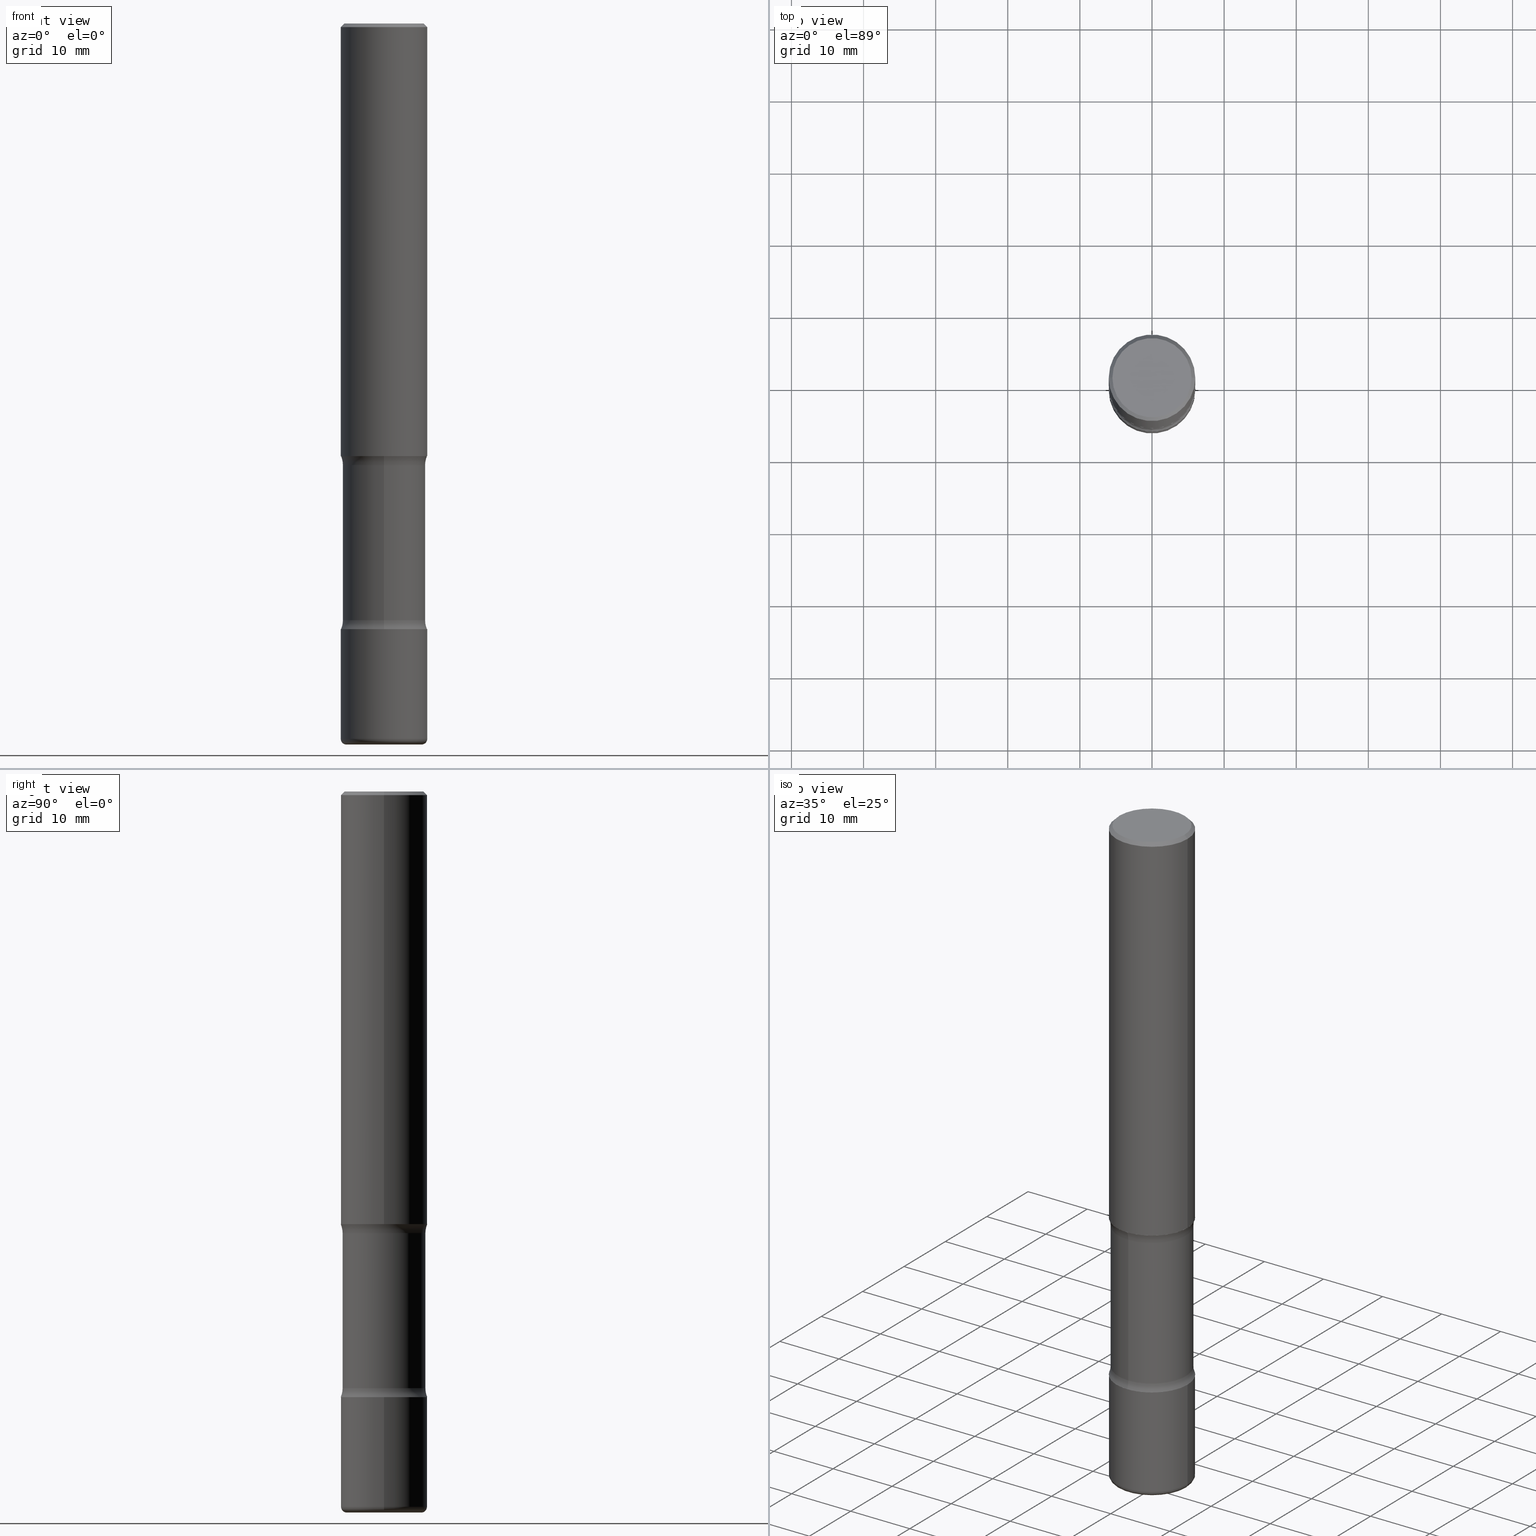
[diagram: canonical four-view strip — front | top / right | iso, engineering-drawing reading convention]
A machine part, canonical four-view strip (front | top / right | iso — engineering-drawing reading convention). The complete STEP part file that produces these views, byte-faithful:
ISO-10303-21;
HEADER;
FILE_DESCRIPTION (( 'STEP AP203' ),
    '1' );
FILE_NAME ('44957.STEP',
    '2024-03-02T03:56:31',
    ( '' ),
    ( '' ),
    'SwSTEP 2.0',
    'SolidWorks 2023',
    '' );
FILE_SCHEMA (( 'CONFIG_CONTROL_DESIGN' ));
ENDSEC;

DATA;
#1 = AXIS2_PLACEMENT_3D ( 'NONE', #309, #432, #483 ) ;
#2 = ORIENTED_EDGE ( 'NONE', *, *, #190, .T. ) ;
#3 = DIRECTION ( 'NONE',  ( 1.000000000000000000, -6.982962677686269077E-15, 0.000000000000000000 ) ) ;
#4 = EDGE_CURVE ( 'NONE', #67, #448, #377, .T. ) ;
#5 = DIRECTION ( 'NONE',  ( 0.000000000000000000, 0.000000000000000000, 1.000000000000000000 ) ) ;
#6 = ORIENTED_EDGE ( 'NONE', *, *, #467, .T. ) ;
#7 = CARTESIAN_POINT ( 'NONE',  ( 5.776686413970529753E-29, -8.247577218615279626E-15, -2.362200000000000077 ) ) ;
#8 = PERSON_AND_ORGANIZATION_ROLE ( 'design_owner' ) ;
#9 = ORIENTED_EDGE ( 'NONE', *, *, #227, .F. ) ;
#10 = CIRCLE ( 'NONE', #560, 0.2362000000000001321 ) ;
#11 = EDGE_CURVE ( 'NONE', #18, #102, #285, .T. ) ;
#12 = DIRECTION ( 'NONE',  ( 2.576736035233696868E-29, -3.303499195578914139E-15, -1.000000000000000000 ) ) ;
#13 = EDGE_LOOP ( 'NONE', ( #92, #182, #137, #2 ) ) ;
#14 = DIRECTION ( 'NONE',  ( 1.000000000000000000, -6.982962677686268288E-15, 0.000000000000000000 ) ) ;
#15 = DIRECTION ( 'NONE',  ( -2.445468806185136597E-29, 3.491481338843145583E-15, 1.000000000000000000 ) ) ;
#16 = APPLICATION_CONTEXT ( 'configuration controlled 3d designs of mechanical parts and assemblies' ) ;
#17 = ORIENTED_EDGE ( 'NONE', *, *, #474, .T. ) ;
#18 = VERTEX_POINT ( 'NONE', #369 ) ;
#19 = DIRECTION ( 'NONE',  ( 1.000000000000000000, -6.982962677686268288E-15, 0.000000000000000000 ) ) ;
#20 = AXIS2_PLACEMENT_3D ( 'NONE', #229, #530, #559 ) ;
#21 = ORIENTED_EDGE ( 'NONE', *, *, #334, .F. ) ;
#22 = AXIS2_PLACEMENT_3D ( 'NONE', #215, #12, #521 ) ;
#23 = ADVANCED_FACE ( 'NONE', ( #415 ), #64, .F. ) ;
#24 = CARTESIAN_POINT ( 'NONE',  ( 9.627810689950883669E-29, -1.374596203102546341E-14, -3.937000000000000277 ) ) ;
#25 = DIRECTION ( 'NONE',  ( 1.000000000000000000, -6.982962677686266711E-15, 0.000000000000000000 ) ) ;
#26 = EDGE_CURVE ( 'NONE', #230, #211, #202, .T. ) ;
#27 = DIRECTION ( 'NONE',  ( -1.000000000000000000, 7.105427357600993970E-15, 0.000000000000000000 ) ) ;
#28 = EDGE_CURVE ( 'NONE', #448, #89, #531, .T. ) ;
#29 = AXIS2_PLACEMENT_3D ( 'NONE', #136, #558, #300 ) ;
#30 = EDGE_CURVE ( 'NONE', #89, #278, #479, .T. ) ;
#31 = DIRECTION ( 'NONE',  ( -2.445468806185136597E-29, 3.491481338843145583E-15, 1.000000000000000000 ) ) ;
#32 = ADVANCED_FACE ( 'NONE', ( #201 ), #238, .F. ) ;
#33 = ADVANCED_FACE ( 'NONE', ( #503 ), #491, .T. ) ;
#34 = CYLINDRICAL_SURFACE ( 'NONE', #524, 0.2260000000000000897 ) ;
#35 = DIRECTION ( 'NONE',  ( 6.860497997771532351E-15, 1.000000000000000000, 0.000000000000000000 ) ) ;
#36 = ORIENTED_EDGE ( 'NONE', *, *, #378, .F. ) ;
#37 = VECTOR ( 'NONE', #380, 39.37007874015748143 ) ;
#38 = DIRECTION ( 'NONE',  ( 6.982962677686265922E-15, 1.000000000000000000, -3.303499195578914139E-15 ) ) ;
#39 = APPROVAL_DATE_TIME ( #257, #488 ) ;
#40 = CARTESIAN_POINT ( 'NONE',  ( 0.2361999999999999378, -1.690279253850498377E-15, -0.02000000000000006981 ) ) ;
#41 =( LENGTH_UNIT ( ) NAMED_UNIT ( * ) SI_UNIT ( $, .METRE. ) );
#42 = CARTESIAN_POINT ( 'NONE',  ( 1.649375784469577778E-15, 0.2361999999999885858, -3.307100000000000151 ) ) ;
#43 = ORIENTED_EDGE ( 'NONE', *, *, #334, .T. ) ;
#44 = EDGE_CURVE ( 'NONE', #102, #314, #142, .T. ) ;
#45 = LINE ( 'NONE', #389, #279 ) ;
#46 = AXIS2_PLACEMENT_3D ( 'NONE', #540, #234, #324 ) ;
#47 = FACE_OUTER_BOUND ( 'NONE', #221, .T. ) ;
#48 = AXIS2_PLACEMENT_3D ( 'NONE', #178, #139, #514 ) ;
#49 = PERSON_AND_ORGANIZATION ( #222, #501 ) ;
#50 = CARTESIAN_POINT ( 'NONE',  ( 8.087409888934865187E-29, -1.154667793568816566E-14, -3.307099999999999707 ) ) ;
#51 = CC_DESIGN_APPROVAL ( #488, ( #364 ) ) ;
#52 = FACE_OUTER_BOUND ( 'NONE', #450, .T. ) ;
#53 = ORIENTED_EDGE ( 'NONE', *, *, #474, .F. ) ;
#54 = FACE_OUTER_BOUND ( 'NONE', #146, .T. ) ;
#55 = PLANE ( 'NONE',  #29 ) ;
#56 = ORIENTED_EDGE ( 'NONE', *, *, #556, .T. ) ;
#57 = EDGE_CURVE ( 'NONE', #211, #230, #151, .T. ) ;
#58 = PERSON_AND_ORGANIZATION ( #222, #501 ) ;
#59 = ORIENTED_EDGE ( 'NONE', *, *, #378, .T. ) ;
#60 = LINE ( 'NONE', #97, #506 ) ;
#61 = CIRCLE ( 'NONE', #189, 0.2362000000000004096 ) ;
#62 = ORIENTED_EDGE ( 'NONE', *, *, #66, .T. ) ;
#63 = CALENDAR_DATE ( 2024, 1, 3 ) ;
#64 = PLANE ( 'NONE',  #46 ) ;
#65 = DIRECTION ( 'NONE',  ( -2.445468806185136597E-29, 3.491481338843145583E-15, 1.000000000000000000 ) ) ;
#66 = EDGE_CURVE ( 'NONE', #297, #362, #195, .T. ) ;
#67 = VERTEX_POINT ( 'NONE', #550 ) ;
#68 = DIRECTION ( 'NONE',  ( -2.445468806185136597E-29, 3.491481338843145583E-15, 1.000000000000000000 ) ) ;
#69 = MANIFOLD_SOLID_BREP ( 'Body-Move/Copy2[1]', #460 ) ;
#70 = MANIFOLD_SOLID_BREP ( 'Body-Move/Copy2[4]', #294 ) ;
#71 = EDGE_CURVE ( 'NONE', #314, #394, #126, .T. ) ;
#72 = ORIENTED_EDGE ( 'NONE', *, *, #414, .T. ) ;
#73 = DIRECTION ( 'NONE',  ( -2.445468806185136597E-29, 3.491481338843145583E-15, 1.000000000000000000 ) ) ;
#74 = CC_DESIGN_DATE_AND_TIME_ASSIGNMENT ( #127, #516, ( #364 ) ) ;
#75 = DIRECTION ( 'NONE',  ( 6.982962677686265922E-15, 1.000000000000000000, -3.303499195578914139E-15 ) ) ;
#76 = CIRCLE ( 'NONE', #386, 0.2362000000000001598 ) ;
#77 = LOCAL_TIME ( 22, 56, 31.00000000000000000, #225 ) ;
#78 = EDGE_CURVE ( 'NONE', #423, #230, #150, .T. ) ;
#79 = DIRECTION ( 'NONE',  ( 6.982962677686265133E-15, 1.000000000000000000, -2.417564596163064317E-15 ) ) ;
#80 = ORIENTED_EDGE ( 'NONE', *, *, #317, .F. ) ;
#81 = PLANE ( 'NONE',  #174 ) ;
#82 = LINE ( 'NONE', #251, #37 ) ;
#83 = AXIS2_PLACEMENT_3D ( 'NONE', #416, #316, #27 ) ;
#84 = AXIS2_PLACEMENT_3D ( 'NONE', #406, #455, #277 ) ;
#85 = PERSON_AND_ORGANIZATION ( #222, #501 ) ;
#86 = FACE_OUTER_BOUND ( 'NONE', #99, .T. ) ;
#87 = EDGE_CURVE ( 'NONE', #155, #497, #464, .T. ) ;
#88 =( NAMED_UNIT ( * ) SI_UNIT ( $, .STERADIAN. ) SOLID_ANGLE_UNIT ( ) );
#89 = VERTEX_POINT ( 'NONE', #40 ) ;
#90 = CARTESIAN_POINT ( 'NONE',  ( 5.652652009242545449E-29, -8.425201545785650473E-15, -2.362200000000000077 ) ) ;
#91 = FACE_OUTER_BOUND ( 'NONE', #452, .T. ) ;
#92 = ORIENTED_EDGE ( 'NONE', *, *, #28, .F. ) ;
#93 = DIRECTION ( 'NONE',  ( 6.982962677686265922E-15, 1.000000000000000000, -2.313165108945183090E-15 ) ) ;
#94 = LOCAL_TIME ( 22, 56, 31.00000000000000000, #349 ) ;
#95 =( NAMED_UNIT ( * ) PLANE_ANGLE_UNIT ( ) SI_UNIT ( $, .RADIAN. ) );
#96 = ORIENTED_EDGE ( 'NONE', *, *, #11, .T. ) ;
#97 = CARTESIAN_POINT ( 'NONE',  ( -0.2361999999999999378, 1.579546157692632635E-15, -0.02000000000000006981 ) ) ;
#98 = APPROVAL_ROLE ( '' ) ;
#99 = EDGE_LOOP ( 'NONE', ( #490, #347, #242, #358 ) ) ;
#100 = CARTESIAN_POINT ( 'NONE',  ( 0.000000000000000000, 0.000000000000000000, 0.000000000000000000 ) ) ;
#101 = PERSON_AND_ORGANIZATION_ROLE ( 'creator' ) ;
#102 = VERTEX_POINT ( 'NONE', #128 ) ;
#103 = DIRECTION ( 'NONE',  ( -1.000000000000000000, 6.982962677686266711E-15, 0.000000000000000000 ) ) ;
#104 = AXIS2_PLACEMENT_3D ( 'NONE', #426, #425, #38 ) ;
#105 = AXIS2_PLACEMENT_3D ( 'NONE', #143, #520, #3 ) ;
#106 = CARTESIAN_POINT ( 'NONE',  ( -1.043851414335219820E-46, 1.490343170380447200E-32, 4.268512490100411279E-18 ) ) ;
#107 = ADVANCED_FACE ( 'NONE', ( #249 ), #34, .T. ) ;
#108 = PERSON_AND_ORGANIZATION ( #222, #501 ) ;
#109 = CARTESIAN_POINT ( 'NONE',  ( 1.649375784469555295E-15, 0.2361999999999919442, -2.362200000000000966 ) ) ;
#110 = EDGE_CURVE ( 'NONE', #155, #314, #10, .T. ) ;
#111 = ORIENTED_EDGE ( 'NONE', *, *, #283, .F. ) ;
#112 = ORIENTED_EDGE ( 'NONE', *, *, #467, .F. ) ;
#113 = FACE_OUTER_BOUND ( 'NONE', #551, .T. ) ;
#114 = DESIGN_CONTEXT ( 'detailed design', #343, 'design' ) ;
#115 = VECTOR ( 'NONE', #135, 39.37007874015748143 ) ;
#116 = DIRECTION ( 'NONE',  ( 6.982962677686265133E-15, 1.000000000000000000, -2.417564596163064317E-15 ) ) ;
#117 = CARTESIAN_POINT ( 'NONE',  ( 0.2047000000000001319, -1.506539282897428551E-14, -3.905499999999999972 ) ) ;
#118 = EDGE_CURVE ( 'NONE', #226, #481, #552, .T. ) ;
#119 = DIRECTION ( 'NONE',  ( 2.576736035233696868E-29, -3.303499195578914139E-15, -1.000000000000000000 ) ) ;
#120 = DIRECTION ( 'NONE',  ( 6.982962677686265133E-15, 1.000000000000000000, -2.417564596163063922E-15 ) ) ;
#121 = SECURITY_CLASSIFICATION_LEVEL ( 'unclassified' ) ;
#122 = CARTESIAN_POINT ( 'NONE',  ( -1.585461087284920754E-15, -0.2260000000000114417, -3.257643352317407537 ) ) ;
#123 = AXIS2_PLACEMENT_3D ( 'NONE', #280, #68, #25 ) ;
#124 = AXIS2_PLACEMENT_3D ( 'NONE', #7, #15, #346 ) ;
#125 = CARTESIAN_POINT ( 'NONE',  ( 9.710495917528571107E-29, -1.362755207898332391E-14, -3.937000000000000277 ) ) ;
#126 = LINE ( 'NONE', #171, #254 ) ;
#127 = DATE_AND_TIME ( #509, #94 ) ;
#128 = CARTESIAN_POINT ( 'NONE',  ( -0.2047000000000001874, -1.212457973895554376E-14, -3.937000000000000277 ) ) ;
#129 = AXIS2_PLACEMENT_3D ( 'NONE', #470, #508, #555 ) ;
#130 = AXIS2_PLACEMENT_3D ( 'NONE', #188, #308, #14 ) ;
#131 = ADVANCED_FACE ( 'NONE', ( #86 ), #533, .F. ) ;
#132 = DIRECTION ( 'NONE',  ( 2.438088387897960049E-29, -3.491481338843145188E-15, -1.000000000000000000 ) ) ;
#133 = ORIENTED_EDGE ( 'NONE', *, *, #57, .F. ) ;
#134 = PERSON_AND_ORGANIZATION_ROLE ( 'classification_officer' ) ;
#135 = DIRECTION ( 'NONE',  ( -2.445468806185136877E-29, 3.491481338843145188E-15, 1.000000000000000000 ) ) ;
#136 = CARTESIAN_POINT ( 'NONE',  ( 5.776686413970529753E-29, -8.247577218615279626E-15, -2.362200000000000077 ) ) ;
#137 = ORIENTED_EDGE ( 'NONE', *, *, #265, .T. ) ;
#138 = CYLINDRICAL_SURFACE ( 'NONE', #159, 0.2362000000000001321 ) ;
#139 = DIRECTION ( 'NONE',  ( -1.000000000000000000, 6.982962677686265922E-15, -4.883557194083112901E-29 ) ) ;
#140 = EDGE_LOOP ( 'NONE', ( #270, #187 ) ) ;
#141 = FACE_OUTER_BOUND ( 'NONE', #549, .T. ) ;
#142 = CIRCLE ( 'NONE', #83, 0.03149999999999995859 ) ;
#143 = CARTESIAN_POINT ( 'NONE',  ( 9.550778422556051750E-29, -1.363598036885190475E-14, -3.905499999999999972 ) ) ;
#144 = CIRCLE ( 'NONE', #168, 0.2260000000000001730 ) ;
#145 = FACE_OUTER_BOUND ( 'NONE', #430, .T. ) ;
#146 = EDGE_LOOP ( 'NONE', ( #96, #434, #465, #21 ) ) ;
#147 = EDGE_LOOP ( 'NONE', ( #223, #441 ) ) ;
#148 = CYLINDRICAL_SURFACE ( 'NONE', #410, 0.2362000000000001321 ) ;
#149 = DIRECTION ( 'NONE',  ( 0.7071067811865472397, -7.319954787623254468E-15, -0.7071067811865477948 ) ) ;
#150 = CIRCLE ( 'NONE', #424, 0.1250000000000000278 ) ;
#151 = CIRCLE ( 'NONE', #500, 0.2260000000000000620 ) ;
#152 = PRODUCT_DEFINITION_FORMATION_WITH_SPECIFIED_SOURCE ( 'ANY', '', #160, .NOT_KNOWN. ) ;
#153 = CARTESIAN_POINT ( 'NONE',  ( 7.959973162669273732E-29, -1.138329793985269342E-14, -3.257643352317407981 ) ) ;
#154 = PLANE ( 'NONE',  #379 ) ;
#155 = VERTEX_POINT ( 'NONE', #375 ) ;
#156 = ORIENTED_EDGE ( 'NONE', *, *, #26, .T. ) ;
#157 = TOROIDAL_SURFACE ( 'NONE', #318, 0.2047000000000001319, 0.03149999999999995859 ) ;
#158 = CARTESIAN_POINT ( 'NONE',  ( 5.802249140232449076E-29, -8.556846580764000763E-15, -2.411656647682591803 ) ) ;
#159 = AXIS2_PLACEMENT_3D ( 'NONE', #302, #198, #502 ) ;
#160 = PRODUCT ( '44957', '44957', '', ( #181 ) ) ;
#161 = EDGE_CURVE ( 'NONE', #448, #67, #442, .T. ) ;
#162 = DIRECTION ( 'NONE',  ( -2.445468806185136597E-29, 3.491481338843145583E-15, 1.000000000000000000 ) ) ;
#163 = CARTESIAN_POINT ( 'NONE',  ( -1.550472547496269736E-15, -0.2260000000000137177, -3.936999999999999389 ) ) ;
#164 = ORIENTED_EDGE ( 'NONE', *, *, #341, .T. ) ;
#165 = ADVANCED_FACE ( 'NONE', ( #331 ), #335, .F. ) ;
#166 = DIRECTION ( 'NONE',  ( 2.576736035233696868E-29, -3.303499195578914139E-15, -1.000000000000000000 ) ) ;
#167 = CIRCLE ( 'NONE', #124, 0.2362000000000001598 ) ;
#168 = AXIS2_PLACEMENT_3D ( 'NONE', #266, #183, #359 ) ;
#169 = CARTESIAN_POINT ( 'NONE',  ( 8.087409888934865187E-29, -1.154667793568816566E-14, -3.307099999999999707 ) ) ;
#170 = CARTESIAN_POINT ( 'NONE',  ( 1.578149565157176094E-15, 0.2259999999999886822, -3.257643352317408869 ) ) ;
#171 = CARTESIAN_POINT ( 'NONE',  ( -0.2362000000000001321, 1.678301941865357577E-15, -1.161852468318209457E-29 ) ) ;
#172 = CALENDAR_DATE ( 2024, 1, 3 ) ;
#173 = PLANE ( 'NONE',  #507 ) ;
#174 = AXIS2_PLACEMENT_3D ( 'NONE', #461, #245, #419 ) ;
#175 = ADVANCED_FACE ( 'NONE', ( #458 ), #81, .T. ) ;
#176 = CIRCLE ( 'NONE', #22, 0.2362000000000001598 ) ;
#177 = CARTESIAN_POINT ( 'NONE',  ( 9.550778422556051750E-29, -1.363598036885190475E-14, -3.905499999999999972 ) ) ;
#178 = CARTESIAN_POINT ( 'NONE',  ( 2.451019899867960221E-15, 0.3509999999999887654, -3.257643352317409313 ) ) ;
#179 = EDGE_LOOP ( 'NONE', ( #321, #164, #43, #80 ) ) ;
#180 = DIRECTION ( 'NONE',  ( 1.000000000000000000, -6.982962677686266711E-15, 4.876176775795935793E-29 ) ) ;
#181 = MECHANICAL_CONTEXT ( 'NONE', #16, 'mechanical' ) ;
#182 = ORIENTED_EDGE ( 'NONE', *, *, #4, .F. ) ;
#183 = DIRECTION ( 'NONE',  ( 2.576736035233696868E-29, -3.303499195578914139E-15, -1.000000000000000000 ) ) ;
#184 = FACE_OUTER_BOUND ( 'NONE', #355, .T. ) ;
#185 = EDGE_CURVE ( 'NONE', #420, #89, #82, .T. ) ;
#186 = APPLICATION_PROTOCOL_DEFINITION ( 'international standard', 'config_control_design', 1994, #343 ) ;
#187 = ORIENTED_EDGE ( 'NONE', *, *, #451, .T. ) ;
#188 = CARTESIAN_POINT ( 'NONE',  ( 8.087409888934865187E-29, -1.154667793568816566E-14, -3.307099999999999707 ) ) ;
#189 = AXIS2_PLACEMENT_3D ( 'NONE', #90, #260, #431 ) ;
#190 = EDGE_CURVE ( 'NONE', #278, #89, #399, .T. ) ;
#191 = ORIENTED_EDGE ( 'NONE', *, *, #26, .F. ) ;
#192 = DIRECTION ( 'NONE',  ( 1.000000000000000000, -6.982962677686269866E-15, 4.883557194083114022E-29 ) ) ;
#193 = ORIENTED_EDGE ( 'NONE', *, *, #87, .T. ) ;
#194 = DIRECTION ( 'NONE',  ( -2.445468806185136597E-29, 3.491481338843145583E-15, 1.000000000000000000 ) ) ;
#195 = CIRCLE ( 'NONE', #129, 0.1249999999999999584 ) ;
#196 = CIRCLE ( 'NONE', #469, 0.2260000000000001730 ) ;
#197 = ORIENTED_EDGE ( 'NONE', *, *, #30, .F. ) ;
#198 = DIRECTION ( 'NONE',  ( -2.445468806185136597E-29, 3.491481338843145583E-15, 1.000000000000000000 ) ) ;
#199 = DIRECTION ( 'NONE',  ( -2.445468806185136597E-29, 3.491481338843145583E-15, 1.000000000000000000 ) ) ;
#200 = ADVANCED_FACE ( 'NONE', ( #340 ), #157, .T. ) ;
#201 = FACE_OUTER_BOUND ( 'NONE', #269, .T. ) ;
#202 = CIRCLE ( 'NONE', #363, 0.2260000000000000620 ) ;
#203 = ORIENTED_EDGE ( 'NONE', *, *, #71, .T. ) ;
#204 = AXIS2_PLACEMENT_3D ( 'NONE', #169, #338, #471 ) ;
#205 = PRODUCT_DEFINITION_SHAPE ( 'NONE', 'NONE',  #494 ) ;
#206 = DIRECTION ( 'NONE',  ( 1.000000000000000000, -6.982962677686266711E-15, 0.000000000000000000 ) ) ;
#207 = CARTESIAN_POINT ( 'NONE',  ( 9.550778422556051750E-29, -1.363598036885190475E-14, -3.905499999999999972 ) ) ;
#208 = DIRECTION ( 'NONE',  ( 1.000000000000000000, -6.982962677686266711E-15, 4.876217060660158478E-29 ) ) ;
#209 = AXIS2_PLACEMENT_3D ( 'NONE', #320, #243, #495 ) ;
#210 = AXIS2_PLACEMENT_3D ( 'NONE', #100, #298, #180 ) ;
#211 = VERTEX_POINT ( 'NONE', #170 ) ;
#212 = CARTESIAN_POINT ( 'NONE',  ( 4.890937612370289799E-31, -6.982962677686315028E-17, -0.02000000000000006981 ) ) ;
#213 = CARTESIAN_POINT ( 'NONE',  ( -1.620449627073580844E-15, -0.2362000000000087363, -2.362199999999999189 ) ) ;
#214 = CALENDAR_DATE ( 2024, 1, 3 ) ;
#215 = CARTESIAN_POINT ( 'NONE',  ( 8.087409888934865187E-29, -1.154667793568816566E-14, -3.307099999999999707 ) ) ;
#216 = ORIENTED_EDGE ( 'NONE', *, *, #492, .F. ) ;
#217 = AXIS2_PLACEMENT_3D ( 'NONE', #177, #396, #192 ) ;
#218 = APPROVAL_PERSON_ORGANIZATION ( #315, #332, #436 ) ;
#219 = CIRCLE ( 'NONE', #326, 0.03149999999999995859 ) ;
#220 = CARTESIAN_POINT ( 'NONE',  ( 0.000000000000000000, 0.000000000000000000, 0.000000000000000000 ) ) ;
#221 = EDGE_LOOP ( 'NONE', ( #477, #398, #193, #275 ) ) ;
#222 = PERSON ( 'UNSPECIFIED', 'UNSPECIFIED', 'UNSPECIFIED', ('UNSPECIFIED'), ('UNSPECIFIED'), ('UNSPECIFIED') ) ;
#223 = ORIENTED_EDGE ( 'NONE', *, *, #11, .F. ) ;
#224 = PERSON_AND_ORGANIZATION_ROLE ( 'creator' ) ;
#225 = COORDINATED_UNIVERSAL_TIME_OFFSET ( 5, 0, .BEHIND. ) ;
#226 = VERTEX_POINT ( 'NONE', #374 ) ;
#227 = EDGE_CURVE ( 'NONE', #226, #230, #253, .T. ) ;
#228 = AXIS2_PLACEMENT_3D ( 'NONE', #24, #199, #371 ) ;
#229 = CARTESIAN_POINT ( 'NONE',  ( 5.652652009242545449E-29, -8.425201545785650473E-15, -2.362200000000000077 ) ) ;
#230 = VERTEX_POINT ( 'NONE', #122 ) ;
#231 = DATE_AND_TIME ( #63, #535 ) ;
#232 = EDGE_CURVE ( 'NONE', #388, #278, #385, .T. ) ;
#233 = CARTESIAN_POINT ( 'NONE',  ( -0.2361999999999999378, 1.579546157692632635E-15, -0.02000000000000006981 ) ) ;
#234 = DIRECTION ( 'NONE',  ( 2.438088387897960049E-29, -3.491481338843145188E-15, -1.000000000000000000 ) ) ;
#235 = CC_DESIGN_DATE_AND_TIME_ASSIGNMENT ( #383, #368, ( #494 ) ) ;
#236 = EDGE_LOOP ( 'NONE', ( #352, #366 ) ) ;
#237 = CARTESIAN_POINT ( 'NONE',  ( 5.776686413970529753E-29, -8.247577218615279626E-15, -2.362200000000000077 ) ) ;
#238 = TOROIDAL_SURFACE ( 'NONE', #325, 0.3510000000000001452, 0.1249999999999999861 ) ;
#239 = LOCAL_TIME ( 22, 56, 31.00000000000000000, #468 ) ;
#240 = ORIENTED_EDGE ( 'NONE', *, *, #190, .F. ) ;
#241 = CARTESIAN_POINT ( 'NONE',  ( 4.890937612370289799E-31, -6.982962677686315028E-17, -0.02000000000000006981 ) ) ;
#242 = ORIENTED_EDGE ( 'NONE', *, *, #492, .T. ) ;
#243 = DIRECTION ( 'NONE',  ( -2.445468806185136597E-29, 3.491481338843145583E-15, 1.000000000000000000 ) ) ;
#244 = AXIS2_PLACEMENT_3D ( 'NONE', #466, #546, #35 ) ;
#245 = DIRECTION ( 'NONE',  ( 2.438088387897960049E-29, -3.491481338843145188E-15, -1.000000000000000000 ) ) ;
#246 = AXIS2_PLACEMENT_3D ( 'NONE', #529, #444, #473 ) ;
#247 = EDGE_CURVE ( 'NONE', #499, #423, #76, .T. ) ;
#248 = ORIENTED_EDGE ( 'NONE', *, *, #185, .F. ) ;
#249 = FACE_OUTER_BOUND ( 'NONE', #361, .T. ) ;
#250 = ADVANCED_FACE ( 'NONE', ( #54 ), #459, .T. ) ;
#251 = CARTESIAN_POINT ( 'NONE',  ( 0.2362000000000000766, -1.649375784469496722E-15, 1.151752954443000368E-29 ) ) ;
#252 = ORIENTED_EDGE ( 'NONE', *, *, #161, .F. ) ;
#253 = LINE ( 'NONE', #163, #306 ) ;
#254 = VECTOR ( 'NONE', #293, 39.37007874015748143 ) ;
#255 = CIRCLE ( 'NONE', #525, 0.2362000000000001598 ) ;
#256 = MANIFOLD_SOLID_BREP ( 'Body-Move/Copy2[2]', #543 ) ;
#257 = DATE_AND_TIME ( #172, #239 ) ;
#258 = APPLICATION_PROTOCOL_DEFINITION ( 'international standard', 'config_control_design', 1994, #16 ) ;
#259 = ORIENTED_EDGE ( 'NONE', *, *, #66, .F. ) ;
#260 = DIRECTION ( 'NONE',  ( 2.576736035233696868E-29, -3.303499195578914139E-15, -1.000000000000000000 ) ) ;
#261 = CYLINDRICAL_SURFACE ( 'NONE', #1, 0.2260000000000000897 ) ;
#262 = LENGTH_MEASURE_WITH_UNIT ( LENGTH_MEASURE( 0.02539999999999999897 ), #41 );
#263 = ORIENTED_EDGE ( 'NONE', *, *, #161, .T. ) ;
#264 = CIRCLE ( 'NONE', #20, 0.2362000000000004096 ) ;
#265 = EDGE_CURVE ( 'NONE', #67, #278, #60, .T. ) ;
#266 = CARTESIAN_POINT ( 'NONE',  ( 5.780088735508136904E-29, -8.588581541621122709E-15, -2.411656647682591803 ) ) ;
#267 = DIRECTION ( 'NONE',  ( 1.000000000000000000, 0.000000000000000000, 0.000000000000000000 ) ) ;
#268 = EDGE_LOOP ( 'NONE', ( #486, #72, #402, #240 ) ) ;
#269 = EDGE_LOOP ( 'NONE', ( #454, #526, #538, #259 ) ) ;
#270 = ORIENTED_EDGE ( 'NONE', *, *, #482, .T. ) ;
#271 = CYLINDRICAL_SURFACE ( 'NONE', #210, 0.2362000000000000766 ) ;
#272 = AXIS2_PLACEMENT_3D ( 'NONE', #106, #65, #413 ) ;
#273 = CIRCLE ( 'NONE', #433, 0.2047000000000001874 ) ;
#274 = CC_DESIGN_PERSON_AND_ORGANIZATION_ASSIGNMENT ( #517, #319, ( #152 ) ) ;
#275 = ORIENTED_EDGE ( 'NONE', *, *, #451, .F. ) ;
#276 = CARTESIAN_POINT ( 'NONE',  ( 7.959973162669273732E-29, -1.138329793985269342E-14, -3.257643352317407981 ) ) ;
#277 = DIRECTION ( 'NONE',  ( 6.982962677686265922E-15, 1.000000000000000000, -3.303499195578914139E-15 ) ) ;
#278 = VERTEX_POINT ( 'NONE', #233 ) ;
#279 = VECTOR ( 'NONE', #376, 39.37007874015748143 ) ;
#280 = CARTESIAN_POINT ( 'NONE',  ( 4.890937612370289799E-31, -6.982962677686315028E-17, -0.02000000000000006981 ) ) ;
#281 = ORIENTED_EDGE ( 'NONE', *, *, #4, .T. ) ;
#282 = CARTESIAN_POINT ( 'NONE',  ( 5.776686413970529753E-29, -8.247577218615279626E-15, -2.362200000000000077 ) ) ;
#283 = EDGE_CURVE ( 'NONE', #481, #362, #264, .T. ) ;
#284 = DIRECTION ( 'NONE',  ( 1.000000000000000000, -6.982962677686269077E-15, 0.000000000000000000 ) ) ;
#285 = CIRCLE ( 'NONE', #228, 0.2047000000000001874 ) ;
#286 = CC_DESIGN_APPROVAL ( #332, ( #152 ) ) ;
#287 = CC_DESIGN_PERSON_AND_ORGANIZATION_ASSIGNMENT ( #85, #134, ( #364 ) ) ;
#288 = CARTESIAN_POINT ( 'NONE',  ( 7.966465199768598522E-29, -1.137400097322265659E-14, -3.257643352317407981 ) ) ;
#289 = APPROVAL_STATUS ( 'not_yet_approved' ) ;
#290 = CARTESIAN_POINT ( 'NONE',  ( 0.2362000000000001321, -1.649375784469497117E-15, 1.151752954443000789E-29 ) ) ;
#291 = EDGE_LOOP ( 'NONE', ( #301, #311, #156, #216 ) ) ;
#292 = APPROVAL_ROLE ( '' ) ;
#293 = DIRECTION ( 'NONE',  ( -2.445468806185136877E-29, 3.491481338843145188E-15, 1.000000000000000000 ) ) ;
#294 = CLOSED_SHELL ( 'NONE', ( #329, #165, #32, #384, #513, #462, #131, #107 ) ) ;
#295 = CIRCLE ( 'NONE', #130, 0.2362000000000001598 ) ;
#296 = CARTESIAN_POINT ( 'NONE',  ( 4.890937612370289799E-31, -6.982962677686315028E-17, -0.02000000000000006981 ) ) ;
#297 = VERTEX_POINT ( 'NONE', #401 ) ;
#298 = DIRECTION ( 'NONE',  ( -2.445468806185136597E-29, 3.491481338843145583E-15, 1.000000000000000000 ) ) ;
#299 = SHAPE_DEFINITION_REPRESENTATION ( #205, #395 ) ;
#300 = DIRECTION ( 'NONE',  ( 6.982962677686265922E-15, 1.000000000000000000, -3.303499195578913745E-15 ) ) ;
#301 = ORIENTED_EDGE ( 'NONE', *, *, #556, .F. ) ;
#302 = CARTESIAN_POINT ( 'NONE',  ( 0.000000000000000000, 0.000000000000000000, 0.000000000000000000 ) ) ;
#303 = CC_DESIGN_PERSON_AND_ORGANIZATION_ASSIGNMENT ( #489, #101, ( #494 ) ) ;
#304 =( CONVERSION_BASED_UNIT ( 'INCH', #262 ) LENGTH_UNIT ( ) NAMED_UNIT ( #403 ) );
#305 = ORIENTED_EDGE ( 'NONE', *, *, #247, .T. ) ;
#306 = VECTOR ( 'NONE', #333, 39.37007874015748143 ) ;
#307 = CC_DESIGN_APPROVAL ( #350, ( #494 ) ) ;
#308 = DIRECTION ( 'NONE',  ( -2.445468806185136597E-29, 3.491481338843145583E-15, 1.000000000000000000 ) ) ;
#309 = CARTESIAN_POINT ( 'NONE',  ( 9.710495917528571107E-29, -1.362755207898332391E-14, -3.937000000000000277 ) ) ;
#310 = EDGE_CURVE ( 'NONE', #420, #388, #167, .T. ) ;
#311 = ORIENTED_EDGE ( 'NONE', *, *, #78, .T. ) ;
#312 = ADVANCED_FACE ( 'NONE', ( #184 ), #148, .T. ) ;
#313 = APPROVAL_DATE_TIME ( #357, #350 ) ;
#314 = VERTEX_POINT ( 'NONE', #475 ) ;
#315 = PERSON_AND_ORGANIZATION ( #222, #501 ) ;
#316 = DIRECTION ( 'NONE',  ( 7.105427357601001859E-15, 1.000000000000000000, -3.491481338843145583E-15 ) ) ;
#317 = EDGE_CURVE ( 'NONE', #314, #155, #453, .T. ) ;
#318 = AXIS2_PLACEMENT_3D ( 'NONE', #422, #554, #548 ) ;
#319 = PERSON_AND_ORGANIZATION_ROLE ( 'design_supplier' ) ;
#320 = CARTESIAN_POINT ( 'NONE',  ( 0.000000000000000000, 0.000000000000000000, 0.000000000000000000 ) ) ;
#321 = ORIENTED_EDGE ( 'NONE', *, *, #44, .F. ) ;
#322 = FACE_OUTER_BOUND ( 'NONE', #236, .T. ) ;
#323 = UNCERTAINTY_MEASURE_WITH_UNIT (LENGTH_MEASURE( 1.000000000000000082E-05 ), #304, 'distance_accuracy_value', 'NONE');
#324 = DIRECTION ( 'NONE',  ( -1.000000000000000000, 6.982962677686265922E-15, -4.876176775795935793E-29 ) ) ;
#325 = AXIS2_PLACEMENT_3D ( 'NONE', #158, #534, #327 ) ;
#326 = AXIS2_PLACEMENT_3D ( 'NONE', #117, #545, #484 ) ;
#327 = DIRECTION ( 'NONE',  ( 6.982962677686265922E-15, 1.000000000000000000, -3.303499195578914139E-15 ) ) ;
#328 = FACE_OUTER_BOUND ( 'NONE', #519, .T. ) ;
#329 = ADVANCED_FACE ( 'NONE', ( #91 ), #261, .T. ) ;
#330 = ADVANCED_FACE ( 'NONE', ( #47 ), #138, .T. ) ;
#331 = FACE_OUTER_BOUND ( 'NONE', #291, .T. ) ;
#332 = APPROVAL ( #360, 'UNSPECIFIED' ) ;
#333 = DIRECTION ( 'NONE',  ( 2.576736035233696868E-29, -3.303499195578913745E-15, -1.000000000000000000 ) ) ;
#334 = EDGE_CURVE ( 'NONE', #18, #155, #219, .T. ) ;
#335 = TOROIDAL_SURFACE ( 'NONE', #409, 0.3510000000000001452, 0.1250000000000000555 ) ;
#336 = APPROVAL_PERSON_ORGANIZATION ( #485, #350, #98 ) ;
#337 = DIRECTION ( 'NONE',  ( -2.445468806185136877E-29, 3.491481338843145188E-15, 1.000000000000000000 ) ) ;
#338 = DIRECTION ( 'NONE',  ( -2.445468806185136597E-29, 3.491481338843145583E-15, 1.000000000000000000 ) ) ;
#339 = ORIENTED_EDGE ( 'NONE', *, *, #30, .T. ) ;
#340 = FACE_OUTER_BOUND ( 'NONE', #179, .T. ) ;
#341 = EDGE_CURVE ( 'NONE', #102, #18, #273, .T. ) ;
#342 = DIRECTION ( 'NONE',  ( 1.000000000000000000, -6.860497997771530774E-15, 4.843100996924597301E-29 ) ) ;
#343 = APPLICATION_CONTEXT ( 'configuration controlled 3d designs of mechanical parts and assemblies' ) ;
#344 = VECTOR ( 'NONE', #337, 39.37007874015748143 ) ;
#345 = CONICAL_SURFACE ( 'NONE', #418, 0.2361999999999999378, 0.7853981633974479459 ) ;
#346 = DIRECTION ( 'NONE',  ( 1.000000000000000000, -6.982962677686268288E-15, 0.000000000000000000 ) ) ;
#347 = ORIENTED_EDGE ( 'NONE', *, *, #247, .F. ) ;
#348 = CARTESIAN_POINT ( 'NONE',  ( 0.000000000000000000, 0.000000000000000000, 0.000000000000000000 ) ) ;
#349 = COORDINATED_UNIVERSAL_TIME_OFFSET ( 5, 0, .BEHIND. ) ;
#350 = APPROVAL ( #438, 'UNSPECIFIED' ) ;
#351 = DIRECTION ( 'NONE',  ( -1.000000000000000000, 6.982962677686265922E-15, -4.876176775795935793E-29 ) ) ;
#352 = ORIENTED_EDGE ( 'NONE', *, *, #310, .F. ) ;
#353 = CARTESIAN_POINT ( 'NONE',  ( 0.2161999999999998645, -1.586759460484351199E-15, 4.268512490111238857E-18 ) ) ;
#354 = CARTESIAN_POINT ( 'NONE',  ( 0.2362000000000001598, -1.319605372015766376E-14, -3.307099999999999707 ) ) ;
#355 = EDGE_LOOP ( 'NONE', ( #522, #203, #439, #557 ) ) ;
#356 = AXIS2_PLACEMENT_3D ( 'NONE', #212, #31, #206 ) ;
#357 = DATE_AND_TIME ( #397, #77 ) ;
#358 = ORIENTED_EDGE ( 'NONE', *, *, #57, .T. ) ;
#359 = DIRECTION ( 'NONE',  ( 6.982962677686265133E-15, 1.000000000000000000, -3.626346894244594700E-15 ) ) ;
#360 = APPROVAL_STATUS ( 'not_yet_approved' ) ;
#361 = EDGE_LOOP ( 'NONE', ( #9, #428, #17, #191 ) ) ;
#362 = VERTEX_POINT ( 'NONE', #109 ) ;
#363 = AXIS2_PLACEMENT_3D ( 'NONE', #153, #119, #116 ) ;
#364 = SECURITY_CLASSIFICATION ( '', '', #121 ) ;
#365 = CARTESIAN_POINT ( 'NONE',  ( 0.2362000000000001598, -9.896953003084776152E-15, -2.362200000000000077 ) ) ;
#366 = ORIENTED_EDGE ( 'NONE', *, *, #414, .F. ) ;
#367 = CARTESIAN_POINT ( 'NONE',  ( 5.780088735508136904E-29, -8.588581541621122709E-15, -2.411656647682591803 ) ) ;
#368 = DATE_TIME_ROLE ( 'creation_date' ) ;
#369 = CARTESIAN_POINT ( 'NONE',  ( 0.2047000000000001874, -1.517537449114784260E-14, -3.937000000000000277 ) ) ;
#370 = DIRECTION ( 'NONE',  ( 1.000000000000000000, -6.982962677686264344E-15, 0.000000000000000000 ) ) ;
#371 = DIRECTION ( 'NONE',  ( 1.000000000000000000, -6.982962677686264344E-15, 0.000000000000000000 ) ) ;
#372 = VECTOR ( 'NONE', #149, 39.37007874015748143 ) ;
#373 = CARTESIAN_POINT ( 'NONE',  ( -1.043851414335219820E-46, 1.490343170380447200E-32, 4.268512490100411279E-18 ) ) ;
#374 = CARTESIAN_POINT ( 'NONE',  ( -1.585461087284945603E-15, -0.2260000000000087772, -2.411656647682590915 ) ) ;
#375 = CARTESIAN_POINT ( 'NONE',  ( 0.2362000000000001321, -1.528535615332140285E-14, -3.905499999999999972 ) ) ;
#376 = DIRECTION ( 'NONE',  ( 2.576736035233696868E-29, -3.303499195578913745E-15, -1.000000000000000000 ) ) ;
#377 = CIRCLE ( 'NONE', #272, 0.2161999999999998645 ) ;
#378 = EDGE_CURVE ( 'NONE', #297, #226, #196, .T. ) ;
#379 = AXIS2_PLACEMENT_3D ( 'NONE', #237, #498, #539 ) ;
#380 = DIRECTION ( 'NONE',  ( -2.445468806185136877E-29, 3.491481338843145188E-15, 1.000000000000000000 ) ) ;
#381 = CC_DESIGN_SECURITY_CLASSIFICATION ( #364, ( #152 ) ) ;
#382 = DIRECTION ( 'NONE',  ( 2.576736035233696868E-29, -3.303499195578914139E-15, -1.000000000000000000 ) ) ;
#383 = DATE_AND_TIME ( #214, #387 ) ;
#384 = ADVANCED_FACE ( 'NONE', ( #328 ), #400, .F. ) ;
#385 = LINE ( 'NONE', #429, #115 ) ;
#386 = AXIS2_PLACEMENT_3D ( 'NONE', #50, #407, #93 ) ;
#387 = LOCAL_TIME ( 22, 56, 31.00000000000000000, #427 ) ;
#388 = VERTEX_POINT ( 'NONE', #449 ) ;
#389 = CARTESIAN_POINT ( 'NONE',  ( 1.578149565157193646E-15, 0.2259999999999864617, -3.937000000000000721 ) ) ;
#390 = CC_DESIGN_PERSON_AND_ORGANIZATION_ASSIGNMENT ( #108, #224, ( #152 ) ) ;
#391 = ORIENTED_EDGE ( 'NONE', *, *, #28, .T. ) ;
#392 = DIRECTION ( 'NONE',  ( -0.7071067811865472397, 2.468850131082253905E-15, -0.7071067811865477948 ) ) ;
#393 = FACE_OUTER_BOUND ( 'NONE', #13, .T. ) ;
#394 = VERTEX_POINT ( 'NONE', #504 ) ;
#395 = ADVANCED_BREP_SHAPE_REPRESENTATION ( '44957', ( #69, #256, #70, #493 ), #536 ) ;
#396 = DIRECTION ( 'NONE',  ( -2.445468806185136597E-29, 3.491481338843145583E-15, 1.000000000000000000 ) ) ;
#397 = CALENDAR_DATE ( 2024, 1, 3 ) ;
#398 = ORIENTED_EDGE ( 'NONE', *, *, #317, .T. ) ;
#399 = CIRCLE ( 'NONE', #356, 0.2361999999999999378 ) ;
#400 = TOROIDAL_SURFACE ( 'NONE', #84, 0.3510000000000001452, 0.1249999999999999861 ) ;
#401 = CARTESIAN_POINT ( 'NONE',  ( 1.578149565157154794E-15, 0.2259999999999915687, -2.411656647682592691 ) ) ;
#402 = ORIENTED_EDGE ( 'NONE', *, *, #185, .T. ) ;
#403 = DIMENSIONAL_EXPONENTS ( 1.000000000000000000, 0.000000000000000000, 0.000000000000000000, 0.000000000000000000, 0.000000000000000000, 0.000000000000000000, 0.000000000000000000 ) ;
#404 = APPROVAL_DATE_TIME ( #231, #332 ) ;
#405 = ORIENTED_EDGE ( 'NONE', *, *, #118, .F. ) ;
#406 = CARTESIAN_POINT ( 'NONE',  ( 5.802249140232449076E-29, -8.556846580764000763E-15, -2.411656647682591803 ) ) ;
#407 = DIRECTION ( 'NONE',  ( 2.576736035233696868E-29, -3.303499195578914139E-15, -1.000000000000000000 ) ) ;
#408 = ORIENTED_EDGE ( 'NONE', *, *, #310, .T. ) ;
#409 = AXIS2_PLACEMENT_3D ( 'NONE', #288, #166, #75 ) ;
#410 = AXIS2_PLACEMENT_3D ( 'NONE', #348, #523, #515 ) ;
#411 = PRODUCT_RELATED_PRODUCT_CATEGORY ( 'detail', '', ( #160 ) ) ;
#412 = DIRECTION ( 'NONE',  ( 6.982962677686265133E-15, 1.000000000000000000, -3.626346894244594700E-15 ) ) ;
#413 = DIRECTION ( 'NONE',  ( 1.000000000000000000, -6.982962677686266711E-15, 4.876217060660158478E-29 ) ) ;
#414 = EDGE_CURVE ( 'NONE', #388, #420, #255, .T. ) ;
#415 = FACE_OUTER_BOUND ( 'NONE', #140, .T. ) ;
#416 = CARTESIAN_POINT ( 'NONE',  ( -0.2047000000000001319, -1.218149938875097893E-14, -3.905499999999999972 ) ) ;
#417 = AXIS2_PLACEMENT_3D ( 'NONE', #373, #162, #208 ) ;
#418 = AXIS2_PLACEMENT_3D ( 'NONE', #296, #518, #527 ) ;
#419 = DIRECTION ( 'NONE',  ( -1.000000000000000000, 6.982962677686265922E-15, -4.876176775795935793E-29 ) ) ;
#420 = VERTEX_POINT ( 'NONE', #365 ) ;
#421 = DIRECTION ( 'NONE',  ( 2.576736035233696868E-29, -3.303499195578914139E-15, -1.000000000000000000 ) ) ;
#422 = CARTESIAN_POINT ( 'NONE',  ( 9.550778422556051750E-29, -1.363598036885190475E-14, -3.905499999999999972 ) ) ;
#423 = VERTEX_POINT ( 'NONE', #537 ) ;
#424 = AXIS2_PLACEMENT_3D ( 'NONE', #510, #342, #511 ) ;
#425 = DIRECTION ( 'NONE',  ( 2.576736035233696868E-29, -3.303499195578914139E-15, -1.000000000000000000 ) ) ;
#426 = CARTESIAN_POINT ( 'NONE',  ( 7.966465199768598522E-29, -1.137400097322265659E-14, -3.257643352317407981 ) ) ;
#427 = COORDINATED_UNIVERSAL_TIME_OFFSET ( 5, 0, .BEHIND. ) ;
#428 = ORIENTED_EDGE ( 'NONE', *, *, #447, .T. ) ;
#429 = CARTESIAN_POINT ( 'NONE',  ( -0.2362000000000000766, 1.678301941865357183E-15, -1.161852468318209177E-29 ) ) ;
#430 = EDGE_LOOP ( 'NONE', ( #281, #263 ) ) ;
#431 = DIRECTION ( 'NONE',  ( 6.982962677686265922E-15, 1.000000000000000000, -3.469747663417771086E-15 ) ) ;
#432 = DIRECTION ( 'NONE',  ( 2.576736035233696868E-29, -3.303499195578914139E-15, -1.000000000000000000 ) ) ;
#433 = AXIS2_PLACEMENT_3D ( 'NONE', #463, #194, #370 ) ;
#434 = ORIENTED_EDGE ( 'NONE', *, *, #44, .T. ) ;
#435 = ORIENTED_EDGE ( 'NONE', *, *, #232, .T. ) ;
#436 = APPROVAL_ROLE ( '' ) ;
#437 = ADVANCED_FACE ( 'NONE', ( #322 ), #154, .F. ) ;
#438 = APPROVAL_STATUS ( 'not_yet_approved' ) ;
#439 = ORIENTED_EDGE ( 'NONE', *, *, #482, .F. ) ;
#440 = PLANE ( 'NONE',  #246 ) ;
#441 = ORIENTED_EDGE ( 'NONE', *, *, #341, .F. ) ;
#442 = CIRCLE ( 'NONE', #417, 0.2161999999999998645 ) ;
#443 = CIRCLE ( 'NONE', #204, 0.2362000000000001598 ) ;
#444 = DIRECTION ( 'NONE',  ( -2.576736035233696868E-29, 3.303499195578913745E-15, 1.000000000000000000 ) ) ;
#445 = ADVANCED_FACE ( 'NONE', ( #113 ), #544, .T. ) ;
#446 = COORDINATED_UNIVERSAL_TIME_OFFSET ( 5, 0, .BEHIND. ) ;
#447 = EDGE_CURVE ( 'NONE', #226, #297, #144, .T. ) ;
#448 = VERTEX_POINT ( 'NONE', #353 ) ;
#449 = CARTESIAN_POINT ( 'NONE',  ( -0.2362000000000001598, -2.480401480830711124E-15, -2.362200000000000077 ) ) ;
#450 = EDGE_LOOP ( 'NONE', ( #112, #111 ) ) ;
#451 = EDGE_CURVE ( 'NONE', #394, #497, #295, .T. ) ;
#452 = EDGE_LOOP ( 'NONE', ( #59, #528, #133, #53 ) ) ;
#453 = CIRCLE ( 'NONE', #105, 0.2362000000000001321 ) ;
#454 = ORIENTED_EDGE ( 'NONE', *, *, #447, .F. ) ;
#455 = DIRECTION ( 'NONE',  ( 2.576736035233696868E-29, -3.303499195578914139E-15, -1.000000000000000000 ) ) ;
#456 = ADVANCED_FACE ( 'NONE', ( #487 ), #271, .T. ) ;
#457 = CARTESIAN_POINT ( 'NONE',  ( 0.2361999999999999378, -1.690279253850498377E-15, -0.02000000000000006981 ) ) ;
#458 = FACE_OUTER_BOUND ( 'NONE', #147, .T. ) ;
#459 = TOROIDAL_SURFACE ( 'NONE', #217, 0.2047000000000001319, 0.03149999999999995859 ) ;
#460 = CLOSED_SHELL ( 'NONE', ( #312, #250, #175, #200, #330, #23 ) ) ;
#461 = CARTESIAN_POINT ( 'NONE',  ( 9.627810689950883669E-29, -1.374596203102546341E-14, -3.937000000000000277 ) ) ;
#462 = ADVANCED_FACE ( 'NONE', ( #141 ), #440, .F. ) ;
#463 = CARTESIAN_POINT ( 'NONE',  ( 9.627810689950883669E-29, -1.374596203102546341E-14, -3.937000000000000277 ) ) ;
#464 = LINE ( 'NONE', #290, #344 ) ;
#465 = ORIENTED_EDGE ( 'NONE', *, *, #110, .F. ) ;
#466 = CARTESIAN_POINT ( 'NONE',  ( -2.408034797217750033E-15, -0.3510000000000086939, -2.411656647682590915 ) ) ;
#467 = EDGE_CURVE ( 'NONE', #362, #481, #61, .T. ) ;
#468 = COORDINATED_UNIVERSAL_TIME_OFFSET ( 5, 0, .BEHIND. ) ;
#469 = AXIS2_PLACEMENT_3D ( 'NONE', #367, #541, #412 ) ;
#470 = CARTESIAN_POINT ( 'NONE',  ( 2.451019899867938922E-15, 0.3509999999999916520, -2.411656647682593135 ) ) ;
#471 = DIRECTION ( 'NONE',  ( 1.000000000000000000, -6.982962677686268288E-15, 0.000000000000000000 ) ) ;
#472 = EDGE_LOOP ( 'NONE', ( #408, #435, #197, #248 ) ) ;
#473 = DIRECTION ( 'NONE',  ( -6.982962677686265922E-15, -1.000000000000000000, 3.303499195578913745E-15 ) ) ;
#474 = EDGE_CURVE ( 'NONE', #297, #211, #45, .T. ) ;
#475 = CARTESIAN_POINT ( 'NONE',  ( -0.2362000000000001321, -1.195767842698654677E-14, -3.905499999999999972 ) ) ;
#476 = CARTESIAN_POINT ( 'NONE',  ( 1.509716530915769732E-15, 0.2161999999999998645, -7.527240092128375121E-16 ) ) ;
#477 = ORIENTED_EDGE ( 'NONE', *, *, #71, .F. ) ;
#478 = DIRECTION ( 'NONE',  ( 2.445468806185136597E-29, -3.491481338843145583E-15, -1.000000000000000000 ) ) ;
#479 = CIRCLE ( 'NONE', #123, 0.2361999999999999378 ) ;
#480 = APPROVAL_PERSON_ORGANIZATION ( #49, #488, #292 ) ;
#481 = VERTEX_POINT ( 'NONE', #213 ) ;
#482 = EDGE_CURVE ( 'NONE', #497, #394, #443, .T. ) ;
#483 = DIRECTION ( 'NONE',  ( 6.982962677686265133E-15, 1.000000000000000000, -2.417564596163063922E-15 ) ) ;
#484 = DIRECTION ( 'NONE',  ( 1.000000000000000000, -6.982962677686295898E-15, 0.000000000000000000 ) ) ;
#485 = PERSON_AND_ORGANIZATION ( #222, #501 ) ;
#486 = ORIENTED_EDGE ( 'NONE', *, *, #232, .F. ) ;
#487 = FACE_OUTER_BOUND ( 'NONE', #268, .T. ) ;
#488 = APPROVAL ( #289, 'UNSPECIFIED' ) ;
#489 = PERSON_AND_ORGANIZATION ( #222, #501 ) ;
#490 = ORIENTED_EDGE ( 'NONE', *, *, #78, .F. ) ;
#491 = CYLINDRICAL_SURFACE ( 'NONE', #209, 0.2362000000000000766 ) ;
#492 = EDGE_CURVE ( 'NONE', #499, #211, #512, .T. ) ;
#493 = AXIS2_PLACEMENT_3D ( 'NONE', #220, #5, #267 ) ;
#494 = PRODUCT_DEFINITION ( 'UNKNOWN', '', #152, #114 ) ;
#495 = DIRECTION ( 'NONE',  ( 1.000000000000000000, -6.982962677686266711E-15, 4.876176775795935793E-29 ) ) ;
#496 = ADVANCED_FACE ( 'NONE', ( #393 ), #345, .T. ) ;
#497 = VERTEX_POINT ( 'NONE', #354 ) ;
#498 = DIRECTION ( 'NONE',  ( -2.438088387897960049E-29, 3.491481338843145188E-15, 1.000000000000000000 ) ) ;
#499 = VERTEX_POINT ( 'NONE', #42 ) ;
#500 = AXIS2_PLACEMENT_3D ( 'NONE', #276, #382, #79 ) ;
#501 = ORGANIZATION ( 'UNSPECIFIED', 'UNSPECIFIED', '' ) ;
#502 = DIRECTION ( 'NONE',  ( 1.000000000000000000, -6.982962677686266711E-15, 4.876176775795936353E-29 ) ) ;
#503 = FACE_OUTER_BOUND ( 'NONE', #472, .T. ) ;
#504 = CARTESIAN_POINT ( 'NONE',  ( -0.2362000000000002153, -1.091302721040467959E-14, -3.307099999999999707 ) ) ;
#505 = DIRECTION ( 'NONE',  ( -2.445468806185136597E-29, 3.491481338843145583E-15, 1.000000000000000000 ) ) ;
#506 = VECTOR ( 'NONE', #392, 39.37007874015748143 ) ;
#507 = AXIS2_PLACEMENT_3D ( 'NONE', #476, #132, #351 ) ;
#508 = DIRECTION ( 'NONE',  ( -1.000000000000000000, 6.982962677686265922E-15, -4.883557194083112901E-29 ) ) ;
#509 = CALENDAR_DATE ( 2024, 1, 3 ) ;
#510 = CARTESIAN_POINT ( 'NONE',  ( -2.408034797217728733E-15, -0.3510000000000115805, -3.257643352317407093 ) ) ;
#511 = DIRECTION ( 'NONE',  ( 6.860497997771532351E-15, 1.000000000000000000, 0.000000000000000000 ) ) ;
#512 = CIRCLE ( 'NONE', #48, 0.1250000000000000278 ) ;
#513 = ADVANCED_FACE ( 'NONE', ( #52 ), #55, .F. ) ;
#514 = DIRECTION ( 'NONE',  ( -6.982962677686267499E-15, -1.000000000000000000, 0.000000000000000000 ) ) ;
#515 = DIRECTION ( 'NONE',  ( 1.000000000000000000, -6.982962677686266711E-15, 4.876176775795936353E-29 ) ) ;
#516 = DATE_TIME_ROLE ( 'classification_date' ) ;
#517 = PERSON_AND_ORGANIZATION ( #222, #501 ) ;
#518 = DIRECTION ( 'NONE',  ( 2.445468806185136597E-29, -3.491481338843145583E-15, -1.000000000000000000 ) ) ;
#519 = EDGE_LOOP ( 'NONE', ( #405, #36, #62, #6 ) ) ;
#520 = DIRECTION ( 'NONE',  ( -2.445468806185136597E-29, 3.491481338843145583E-15, 1.000000000000000000 ) ) ;
#521 = DIRECTION ( 'NONE',  ( 6.982962677686265922E-15, 1.000000000000000000, -2.313165108945183090E-15 ) ) ;
#522 = ORIENTED_EDGE ( 'NONE', *, *, #110, .T. ) ;
#523 = DIRECTION ( 'NONE',  ( -2.445468806185136597E-29, 3.491481338843145583E-15, 1.000000000000000000 ) ) ;
#524 = AXIS2_PLACEMENT_3D ( 'NONE', #125, #421, #120 ) ;
#525 = AXIS2_PLACEMENT_3D ( 'NONE', #282, #73, #19 ) ;
#526 = ORIENTED_EDGE ( 'NONE', *, *, #118, .T. ) ;
#527 = DIRECTION ( 'NONE',  ( -1.000000000000000000, 6.982962677686266711E-15, 0.000000000000000000 ) ) ;
#528 = ORIENTED_EDGE ( 'NONE', *, *, #227, .T. ) ;
#529 = CARTESIAN_POINT ( 'NONE',  ( 8.087409888934865187E-29, -1.154667793568816566E-14, -3.307099999999999707 ) ) ;
#530 = DIRECTION ( 'NONE',  ( 2.576736035233696868E-29, -3.303499195578914139E-15, -1.000000000000000000 ) ) ;
#531 = LINE ( 'NONE', #457, #372 ) ;
#532 = CC_DESIGN_PERSON_AND_ORGANIZATION_ASSIGNMENT ( #58, #8, ( #160 ) ) ;
#533 = TOROIDAL_SURFACE ( 'NONE', #104, 0.3510000000000001452, 0.1250000000000000555 ) ;
#534 = DIRECTION ( 'NONE',  ( 2.576736035233696868E-29, -3.303499195578914139E-15, -1.000000000000000000 ) ) ;
#535 = LOCAL_TIME ( 22, 56, 31.00000000000000000, #446 ) ;
#536 =( GEOMETRIC_REPRESENTATION_CONTEXT ( 3 ) GLOBAL_UNCERTAINTY_ASSIGNED_CONTEXT ( ( #323 ) ) GLOBAL_UNIT_ASSIGNED_CONTEXT ( ( #304, #95, #88 ) ) REPRESENTATION_CONTEXT ( 'NONE', 'WORKASPACE' ) );
#537 = CARTESIAN_POINT ( 'NONE',  ( -1.620449627073555206E-15, -0.2362000000000116784, -3.307099999999999262 ) ) ;
#538 = ORIENTED_EDGE ( 'NONE', *, *, #283, .T. ) ;
#539 = DIRECTION ( 'NONE',  ( 1.000000000000000000, -6.982962677686265922E-15, 4.876176775795935793E-29 ) ) ;
#540 = CARTESIAN_POINT ( 'NONE',  ( 8.087409888934865187E-29, -1.154667793568816566E-14, -3.307099999999999707 ) ) ;
#541 = DIRECTION ( 'NONE',  ( 2.576736035233696868E-29, -3.303499195578914139E-15, -1.000000000000000000 ) ) ;
#542 = ORIENTED_EDGE ( 'NONE', *, *, #265, .F. ) ;
#543 = CLOSED_SHELL ( 'NONE', ( #33, #445, #496, #547, #437, #456 ) ) ;
#544 = CONICAL_SURFACE ( 'NONE', #553, 0.2361999999999999378, 0.7853981633974479459 ) ;
#545 = DIRECTION ( 'NONE',  ( -6.982962677686266711E-15, -1.000000000000000000, 3.491481338843145583E-15 ) ) ;
#546 = DIRECTION ( 'NONE',  ( 1.000000000000000000, -6.860497997771530774E-15, 4.843100996924597301E-29 ) ) ;
#547 = ADVANCED_FACE ( 'NONE', ( #145 ), #173, .F. ) ;
#548 = DIRECTION ( 'NONE',  ( 1.000000000000000000, -6.982962677686269866E-15, 4.883557194083114022E-29 ) ) ;
#549 = EDGE_LOOP ( 'NONE', ( #305, #56 ) ) ;
#550 = CARTESIAN_POINT ( 'NONE',  ( -0.2161999999999998645, 1.544631344304201183E-15, 4.268512490089730842E-18 ) ) ;
#551 = EDGE_LOOP ( 'NONE', ( #252, #391, #339, #542 ) ) ;
#552 = CIRCLE ( 'NONE', #244, 0.1249999999999999584 ) ;
#553 = AXIS2_PLACEMENT_3D ( 'NONE', #241, #478, #103 ) ;
#554 = DIRECTION ( 'NONE',  ( -2.445468806185136597E-29, 3.491481338843145583E-15, 1.000000000000000000 ) ) ;
#555 = DIRECTION ( 'NONE',  ( -6.982962677686267499E-15, -1.000000000000000000, 0.000000000000000000 ) ) ;
#556 = EDGE_CURVE ( 'NONE', #423, #499, #176, .T. ) ;
#557 = ORIENTED_EDGE ( 'NONE', *, *, #87, .F. ) ;
#558 = DIRECTION ( 'NONE',  ( 2.576736035233696868E-29, -3.303499195578913745E-15, -1.000000000000000000 ) ) ;
#559 = DIRECTION ( 'NONE',  ( 6.982962677686265922E-15, 1.000000000000000000, -3.469747663417771086E-15 ) ) ;
#560 = AXIS2_PLACEMENT_3D ( 'NONE', #207, #505, #284 ) ;
ENDSEC;
END-ISO-10303-21;
